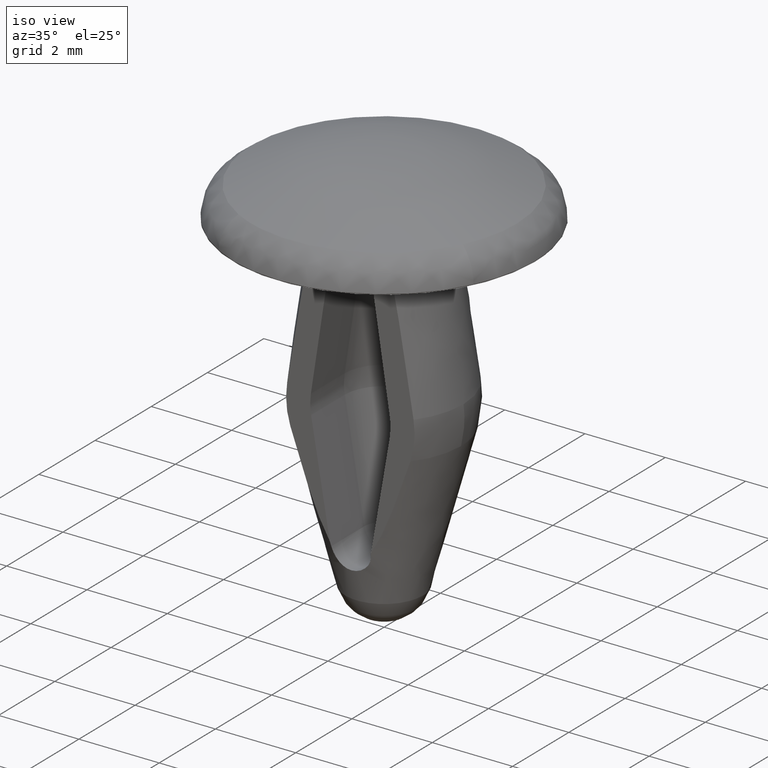
[diagram: clean part render]
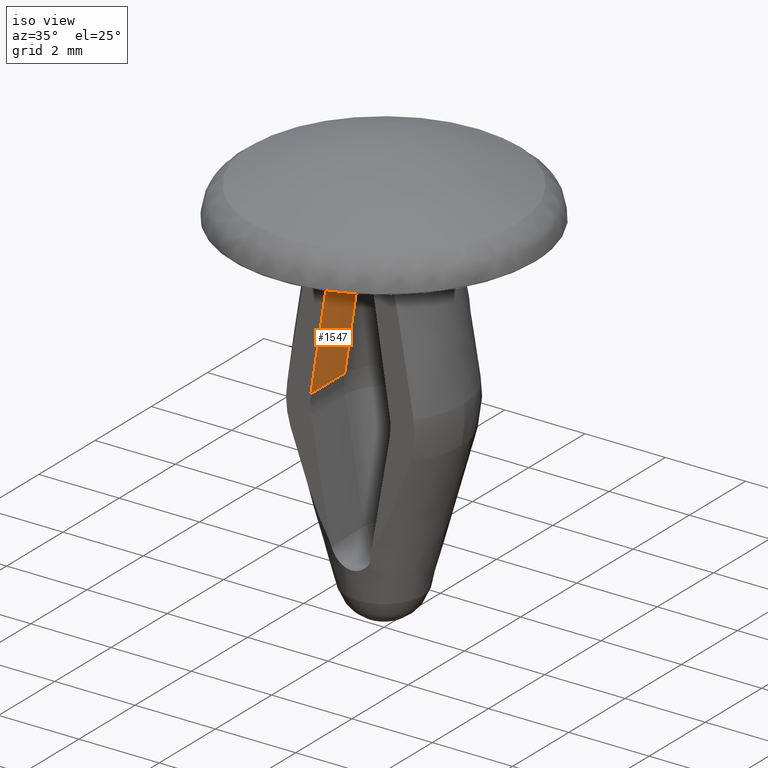
[diagram: same view with one face highlighted and labeled with its STEP entity id]
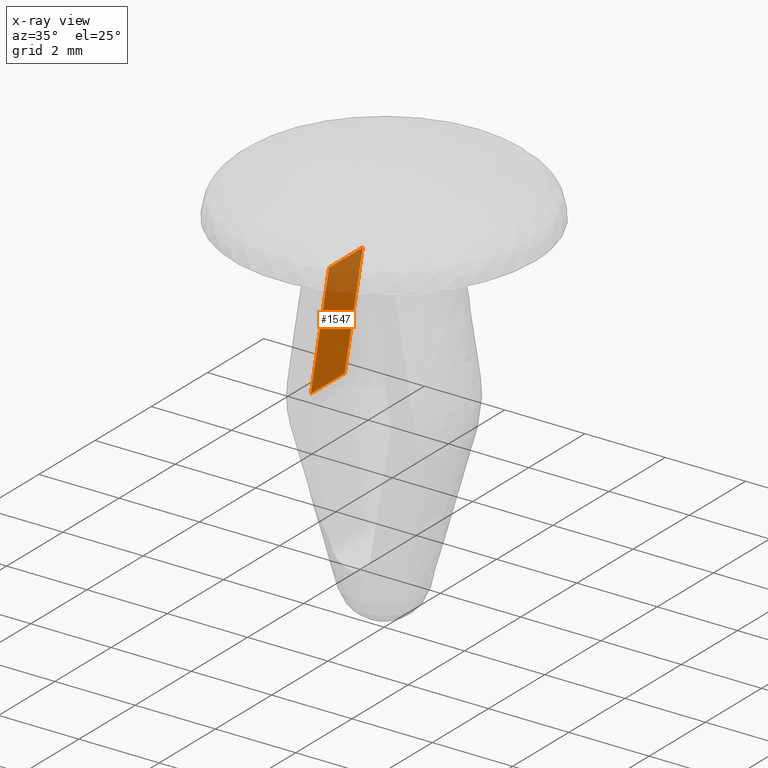
[diagram: x-ray of the same camera — body ghosted, the highlighted face saturated]
A machine part, iso view. The second image highlights one B-rep face of the part: STEP entity #1547.
The next image is the same camera in x-ray: the body ghosted, the highlighted face saturated — about 28% of this face is hidden behind the body in this view.
In plain terms, the highlighted face is a freeform B-spline surface patch.
Its self-contained STEP definition (entity closure, byte-faithful):
#1021=CARTESIAN_POINT('',(-0.982788000000000,-1.199999999999980,-3.773422000000000));
#1022=VERTEX_POINT('',#1021);
#1036=CARTESIAN_POINT('',(-0.531441000000000,-1.199999999999980,-0.819693999999956));
#1037=VERTEX_POINT('',#1036);
#1038=CARTESIAN_POINT('',(-0.531441000000000,-1.199999999999980,-0.819693999999956));
#1039=CARTESIAN_POINT('',(-0.982788000000000,-1.199999999999980,-3.773422000000000));
#1040=QUASI_UNIFORM_CURVE('',1,(#1038,#1039),.UNSPECIFIED.,.F.,.U.);
#1041=EDGE_CURVE('',#1037,#1022,#1040,.T.);
#1254=CARTESIAN_POINT('',(-0.982788363668221,0.0,-3.773422000000000));
#1255=VERTEX_POINT('',#1254);
#1321=CARTESIAN_POINT('',(-0.531441000000000,0.0,-0.819693999999956));
#1322=VERTEX_POINT('',#1321);
#1342=CARTESIAN_POINT('',(-0.531441000000000,0.0,-0.819693999999956));
#1343=CARTESIAN_POINT('',(-0.982788363668221,0.0,-3.773422000000000));
#1344=QUASI_UNIFORM_CURVE('',1,(#1342,#1343),.UNSPECIFIED.,.F.,.U.);
#1345=EDGE_CURVE('',#1322,#1255,#1344,.T.);
#1521=CARTESIAN_POINT('',(-0.982788363668221,0.0,-3.773422000000000));
#1522=CARTESIAN_POINT('',(-0.982788000000000,-1.199999999999980,-3.773422000000000));
#1523=QUASI_UNIFORM_CURVE('',1,(#1521,#1522),.UNSPECIFIED.,.F.,.U.);
#1524=EDGE_CURVE('',#1255,#1022,#1523,.T.);
#1532=CARTESIAN_POINT('',(-1.005332794724382,-1.259940053997854,-3.920960792617701));
#1533=CARTESIAN_POINT('',(-0.508896205502687,-1.259940053997854,-0.672155208868173));
#1534=CARTESIAN_POINT('',(-1.005332794724382,0.059940032540201,-3.920960792617701));
#1535=CARTESIAN_POINT('',(-0.508896205502687,0.059940032540201,-0.672155208868173));
#1536=B_SPLINE_SURFACE_WITH_KNOTS('',1,1,((#1532,#1534),(#1533,#1535)),.UNSPECIFIED.,.F.,.F.,.U.,(2,2),(2,2),(0.0,3.286515937603251),(0.041708295834810,0.958291689264029),.UNSPECIFIED.);
#1537=CARTESIAN_POINT('',(-0.531441000000000,0.0,-0.819693999999956));
#1538=CARTESIAN_POINT('',(-0.531441000000000,-1.199999999999980,-0.819693999999956));
#1539=QUASI_UNIFORM_CURVE('',1,(#1537,#1538),.UNSPECIFIED.,.F.,.U.);
#1540=EDGE_CURVE('',#1322,#1037,#1539,.T.);
#1541=ORIENTED_EDGE('',*,*,#1540,.T.);
#1542=ORIENTED_EDGE('',*,*,#1041,.T.);
#1543=ORIENTED_EDGE('',*,*,#1524,.F.);
#1544=ORIENTED_EDGE('',*,*,#1345,.F.);
#1545=EDGE_LOOP('',(#1541,#1542,#1543,#1544));
#1546=FACE_OUTER_BOUND('',#1545,.T.);
#1547=ADVANCED_FACE('',(#1546),#1536,.F.);